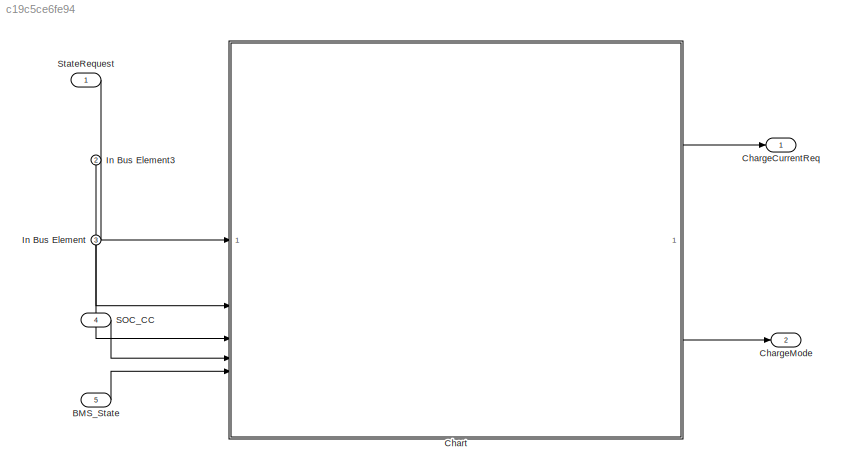
MODEL slx_c19c5ce6fe94
KIND model
CONFIG AbsTol = auto
CONFIG EnableMultiTasking = off
CONFIG FixedStep = auto
CONFIG MaxStep = auto
CONFIG MinStep = auto
CONFIG RelTol = 1e-3
CONFIG SampleTimeConstraint = Unconstrained
CONFIG SolverName = VariableStepAuto
CONFIG StartTime = 0.0
CONFIG StopTime = 10.0
BLOCK [Inport] BMS_State
  OutDataTypeStr = Enum: BMS_State_Enum
  Port = 5
BLOCK [Outport] ChargeCurrentReq
BLOCK [Outport] ChargeMode
  Port = 2
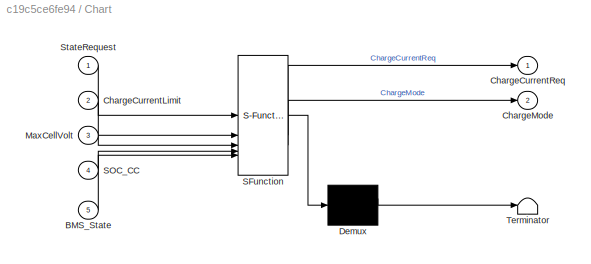
BLOCK [SubSystem] Chart
  ErrorFcn = Stateflow.Translate.translate
  PermitHierarchicalResolution = ExplicitOnly
  SFBlockType = Chart
  TreatAsAtomicUnit = on
BLOCK [Demux] Chart/ Demux 
  Outputs = 1
BLOCK [S-Function] Chart/ SFunction 
  EnableBusSupport = on
  FunctionName = sf_sfun
  Parameters = CV_Gain,MaxCellVoltThrsld,MaxChrgCurrLimit,Np_Module,currentFactor,noCurrent,voltThreshold
  PortCounts = [5 3]
  SFcnIsStateOwnerBlock = off
  SFunctionDeploymentMode = off
  Tag = Stateflow S-Function 3
BLOCK [Terminator] Chart/ Terminator 
BLOCK [Inport] Chart/BMS_State
  Port = 5
BLOCK [Inport] Chart/ChargeCurrentLimit
  Port = 2
BLOCK [Outport] Chart/ChargeCurrentReq
BLOCK [Outport] Chart/ChargeMode
  Port = 2
BLOCK [Inport] Chart/MaxCellVolt
  Port = 3
BLOCK [Inport] Chart/SOC_CC
  Port = 4
BLOCK [Inport] Chart/StateRequest
BLOCK [Inport] In Bus Element
  Port = 3
BLOCK [Inport] In Bus Element3
  Port = 2
BLOCK [Inport] SOC_CC
  Port = 4
BLOCK [Inport] StateRequest
  OutDataTypeStr = Enum: SRE
  PortDimensions = 1
  SignalType = real
  VarSizeSig = No
LINE BMS_State:1 -> Chart:5
LINE Chart:1 -> ChargeCurrentReq:1
LINE Chart:2 -> ChargeMode:1
LINE In Bus Element3:1 -> Chart:2
LINE In Bus Element:1 -> Chart:3
LINE SOC_CC:1 -> Chart:4
LINE StateRequest:1 -> Chart:1
CHART Chart states=3 transitions=5
  STATE_LABEL 'ChrgStandby\nen:\nChargeMode = ChargeMode_Enum.ChrgStandby;\nChargeCurrentReq = noCurrent;'
  STATE_LABEL 'ChrgCC\nen:\nChargeMode = ChargeMode_Enum.CC;\ndu:\nChargeCurrentReq = ChargeCurrentLimit;\n'
  STATE_LABEL 'ChrgCV\nen:\nChargeMode = ChargeMode_Enum.CV;\ndu:\nChargeCurrentReq = ChargeCurrentReq - CV_Gain*(MaxCellVolt - MaxCellVoltThrsld);\nChargeCurrentReq = min(ChargeCurrentReq, ChargeCurrentLimit);'
CHART  states=0 transitions=0
